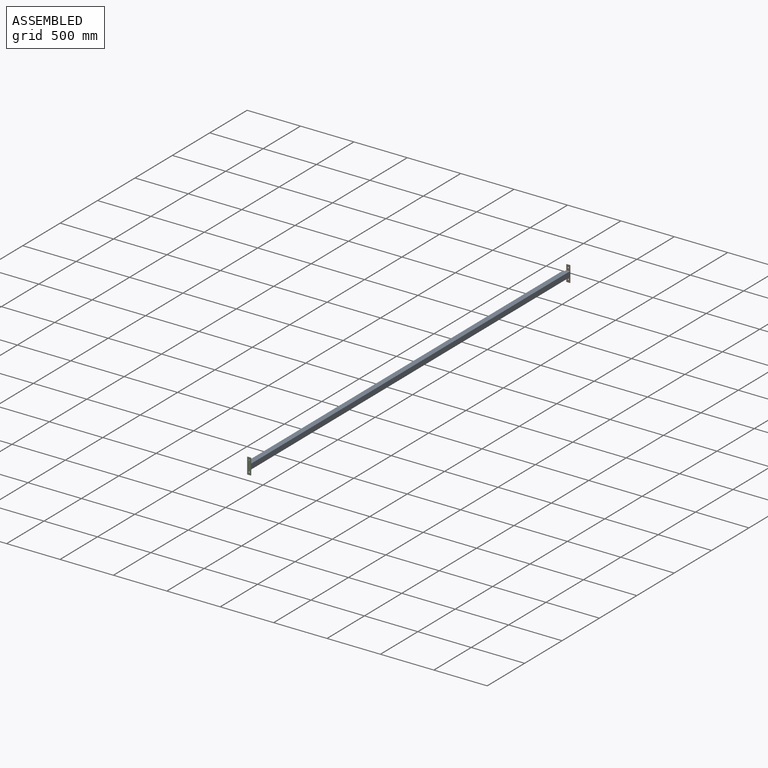
[diagram: assembled view]
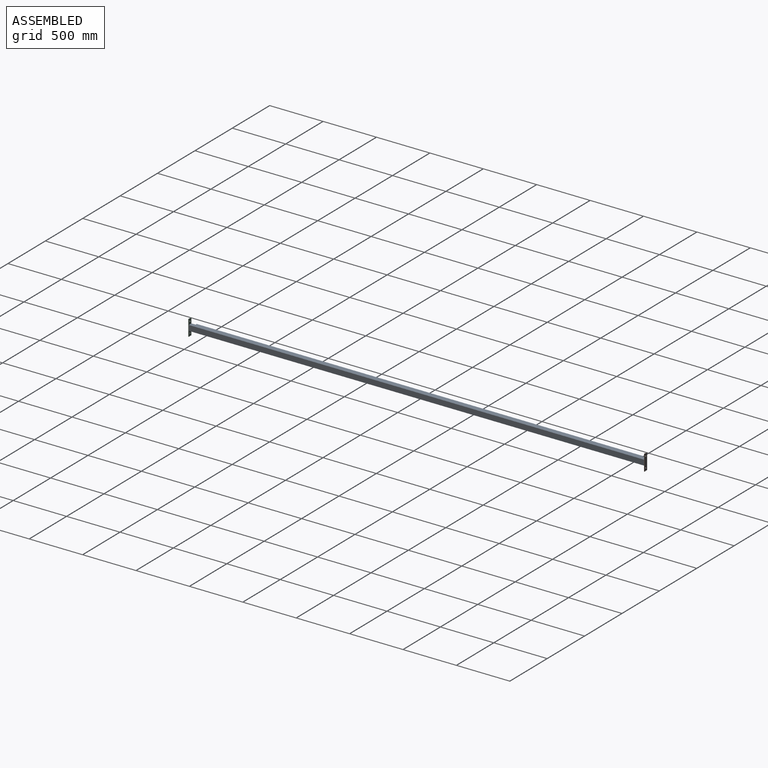
[diagram: assembled view, second angle]
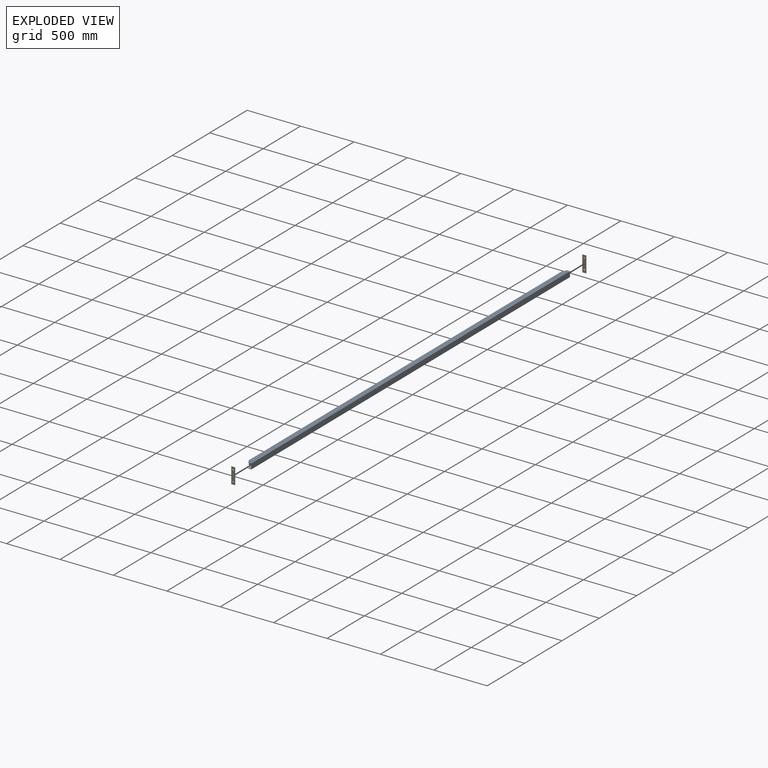
[diagram: exploded view]
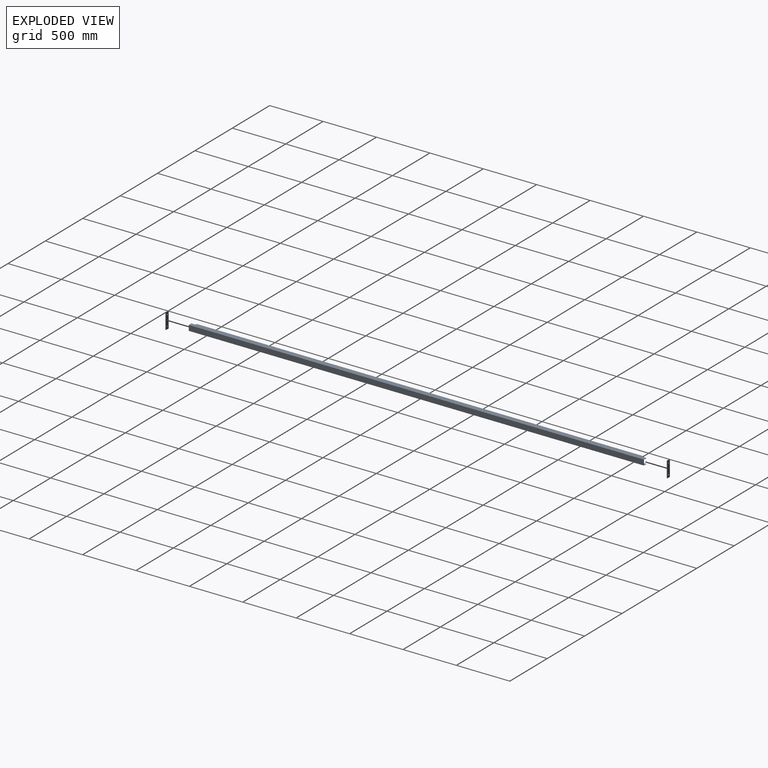
[diagram: exploded view, second angle]
ASSEMBLY  parts=3 mates=2
PART A: 16 faces, bbox 50x4261.8x50 mm
  f0: plane 4261.8x50mm, normal (0,0,-1), area 211919.8mm2, adj f2,f6,f7,f9,f10,f11,f13,f14
  f1: plane 4261.8x50mm, normal (0,0,1), area 211919.8mm2, adj f2,f6,f7,f9,f10,f12,f13,f15
  f2: plane 4183.8x50mm, normal (-1,0,0), area 209189.8mm2, adj f0,f1,f10,f13
  f3: plane 4261.8x48mm, normal (0,0,1), area 203474.2mm2, adj f4,f6,f7,f8,f10,f11,f13,f14
  f4: plane 4183.8x48mm, normal (1,0,0), area 200822.2mm2, adj f3,f5,f10,f13
  f5: plane 4261.8x48mm, normal (0,0,-1), area 203474.2mm2, adj f4,f6,f7,f8,f10,f12,f13,f15
  f6: plane 50x35mm, normal (0,-1,0), area 118mm2, adj f0,f1,f3,f5,f8,f9,f11,f12
  f7: plane 50x35mm, normal (0,1,0), area 118mm2, adj f0,f1,f3,f5,f8,f9,f14,f15
  f8: plane 4261.8x48mm, normal (-1,0,0), area 204566.2mm2, adj f3,f5,f6,f7
  f9: plane 4261.8x50mm, normal (1,0,0), area 213089.8mm2, adj f0,f1,f6,f7
  f10: plane 50x15mm, normal (0,-1,0), area 78mm2, adj f0,f1,f2,f3,f4,f5,f11,f12
  f11: plane 39x1mm, normal (-1,0,0), area 39mm2, adj f0,f3,f6,f10
  f12: plane 39x1mm, normal (-1,0,0), area 39mm2, adj f1,f5,f6,f10
  f13: plane 50x15mm, normal (0,1,0), area 78mm2, adj f0,f1,f2,f3,f4,f5,f14,f15
  f14: plane 39x1mm, normal (-1,0,0), area 39mm2, adj f0,f3,f7,f13
  f15: plane 39x1mm, normal (-1,0,0), area 39mm2, adj f1,f5,f7,f13
PART B: 8 faces, bbox 35x5x150 mm
  f0: plane 35x5mm, normal (0,0,-1), area 175mm2, adj f1,f5,f6,f7
  f1: plane 150x5mm, normal (1,0,0), area 750mm2, adj f0,f2,f6,f7
  f2: plane 35x5mm, normal (0,0,1), area 175mm2, adj f1,f5,f6,f7
  f3: cylinder r=5.5mm len=11mm, axis (0,1,0), area 172.8mm2, adj f6,f7
  f4: cylinder r=5.5mm len=11mm, axis (0,1,0), area 172.8mm2, adj f6,f7
  f5: plane 150x5mm, normal (-1,0,0), area 750mm2, adj f0,f2,f6,f7
  f6: plane 150x35mm, normal (0,-1,0), area 5059.9mm2, adj f0,f1,f2,f3,f4,f5
  f7: plane 150x35mm, normal (0,1,0), area 5059.9mm2, adj f0,f1,f2,f3,f4,f5
PART C: same geometry as B
PLACE A t=(-619.02,-391.13,-50.61)mm
PLACE B t=(-611.52,1742.27,-50.61)mm
PLACE C t=(-611.52,-2524.53,-50.61)mm
MATE fastened B.f6 <-> A.f7  axis (0,-1,0) through (-594.02,1739.77,-50.61)mm
MATE fastened C.f7 <-> A.f6  axis (0,1,0) through (-594.02,-2522.03,-50.61)mm
